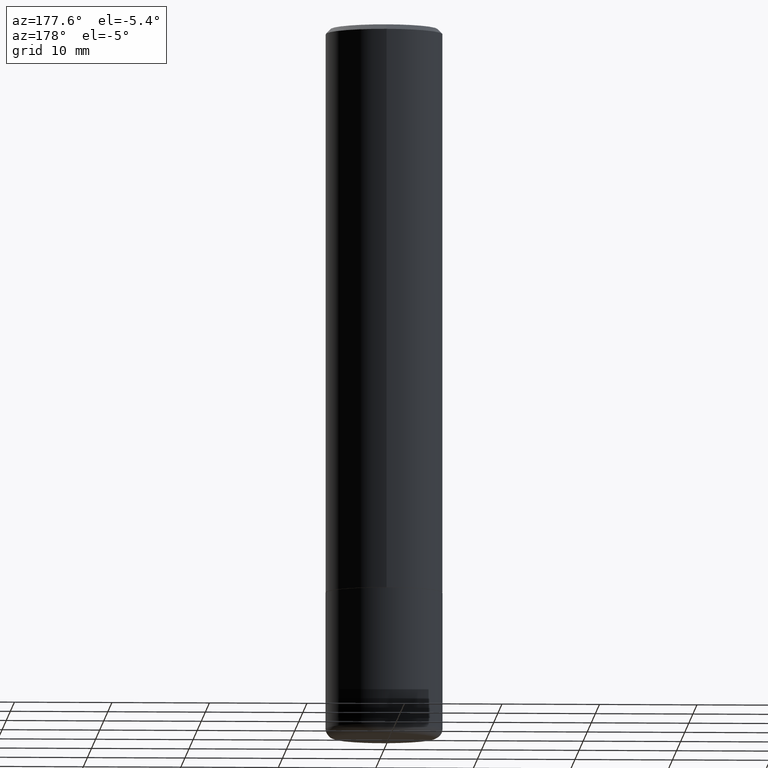
[diagram: clean part render]
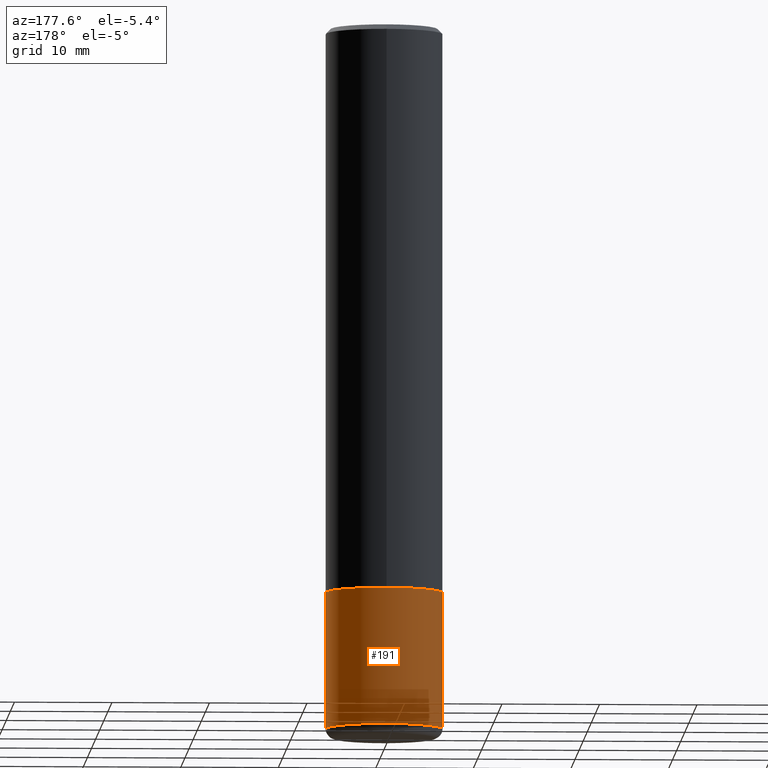
[diagram: same view with one face highlighted and labeled with its STEP entity id]
A machine part, auxiliary view. The second image highlights one B-rep face of the part: STEP entity #191.
In plain terms, the highlighted cylindrical surface (partial cylindrical patch) has radius 5.9995 mm, axis along (-0, 0, 1).
Its self-contained STEP definition (entity closure, byte-faithful):
#34 = DIRECTION ( 'NONE',  ( 1.000000000000000000, -6.982962677686268288E-15, 0.000000000000000000 ) ) ;
#45 = CARTESIAN_POINT ( 'NONE',  ( 0.2361999999999999933, -1.649375784469496131E-15, 1.151752954443000088E-29 ) ) ;
#56 = LINE ( 'NONE', #342, #288 ) ;
#62 = CIRCLE ( 'NONE', #237, 0.2361999999999999933 ) ;
#71 = DIRECTION ( 'NONE',  ( -2.445468806185136597E-29, 3.491481338843145583E-15, 1.000000000000000000 ) ) ;
#78 = DIRECTION ( 'NONE',  ( -2.445468806185136597E-29, 3.491481338843145583E-15, 1.000000000000000000 ) ) ;
#99 = VERTEX_POINT ( 'NONE', #151 ) ;
#101 = ORIENTED_EDGE ( 'NONE', *, *, #150, .T. ) ;
#106 = DIRECTION ( 'NONE',  ( -2.445468806185136597E-29, 3.491481338843145583E-15, 1.000000000000000000 ) ) ;
#107 = VERTEX_POINT ( 'NONE', #391 ) ;
#143 = ORIENTED_EDGE ( 'NONE', *, *, #207, .F. ) ;
#150 = EDGE_CURVE ( 'NONE', #99, #107, #62, .T. ) ;
#151 = CARTESIAN_POINT ( 'NONE',  ( 0.2361999999999998823, -1.154632878755427425E-14, -2.834599999999999120 ) ) ;
#165 = EDGE_CURVE ( 'NONE', #99, #171, #334, .T. ) ;
#168 = AXIS2_PLACEMENT_3D ( 'NONE', #416, #106, #34 ) ;
#171 = VERTEX_POINT ( 'NONE', #324 ) ;
#183 = DIRECTION ( 'NONE',  ( -2.445468806185136877E-29, 3.491481338843145188E-15, 1.000000000000000000 ) ) ;
#190 = EDGE_LOOP ( 'NONE', ( #101, #413, #143, #201 ) ) ;
#191 = ADVANCED_FACE ( 'NONE', ( #320 ), #353, .T. ) ;
#195 = DIRECTION ( 'NONE',  ( -2.445468806185136877E-29, 3.491481338843145188E-15, 1.000000000000000000 ) ) ;
#199 = VERTEX_POINT ( 'NONE', #234 ) ;
#200 = VECTOR ( 'NONE', #183, 39.37007874015748143 ) ;
#201 = ORIENTED_EDGE ( 'NONE', *, *, #165, .F. ) ;
#207 = EDGE_CURVE ( 'NONE', #171, #199, #272, .T. ) ;
#214 = DIRECTION ( 'NONE',  ( 1.000000000000000000, -6.982962677686265133E-15, 0.000000000000000000 ) ) ;
#227 = CARTESIAN_POINT ( 'NONE',  ( 0.000000000000000000, 0.000000000000000000, 0.000000000000000000 ) ) ;
#234 = CARTESIAN_POINT ( 'NONE',  ( -0.2362000000000000766, -7.256398804234252280E-15, -2.283399999999999874 ) ) ;
#237 = AXIS2_PLACEMENT_3D ( 'NONE', #418, #78, #214 ) ;
#272 = CIRCLE ( 'NONE', #168, 0.2362000000000000210 ) ;
#288 = VECTOR ( 'NONE', #195, 39.37007874015748143 ) ;
#289 = EDGE_CURVE ( 'NONE', #107, #199, #56, .T. ) ;
#300 = AXIS2_PLACEMENT_3D ( 'NONE', #227, #71, #411 ) ;
#320 = FACE_OUTER_BOUND ( 'NONE', #190, .T. ) ;
#324 = CARTESIAN_POINT ( 'NONE',  ( 0.2362000000000000210, -9.621824273583934567E-15, -2.283399999999999874 ) ) ;
#334 = LINE ( 'NONE', #45, #200 ) ;
#342 = CARTESIAN_POINT ( 'NONE',  ( -0.2361999999999999933, 1.678301941865356591E-15, -1.161852468318208757E-29 ) ) ;
#353 = CYLINDRICAL_SURFACE ( 'NONE', #300, 0.2361999999999999933 ) ;
#391 = CARTESIAN_POINT ( 'NONE',  ( -0.2361999999999998823, -8.218651061219422913E-15, -2.834599999999999120 ) ) ;
#411 = DIRECTION ( 'NONE',  ( 1.000000000000000000, -6.982962677686266711E-15, 4.876176775795936353E-29 ) ) ;
#413 = ORIENTED_EDGE ( 'NONE', *, *, #289, .T. ) ;
#416 = CARTESIAN_POINT ( 'NONE',  ( 5.583983472043140562E-29, -7.972448489114438042E-15, -2.283399999999999874 ) ) ;
#418 = CARTESIAN_POINT ( 'NONE',  ( 6.931925878012386396E-29, -9.896953003084777729E-15, -2.834599999999999120 ) ) ;